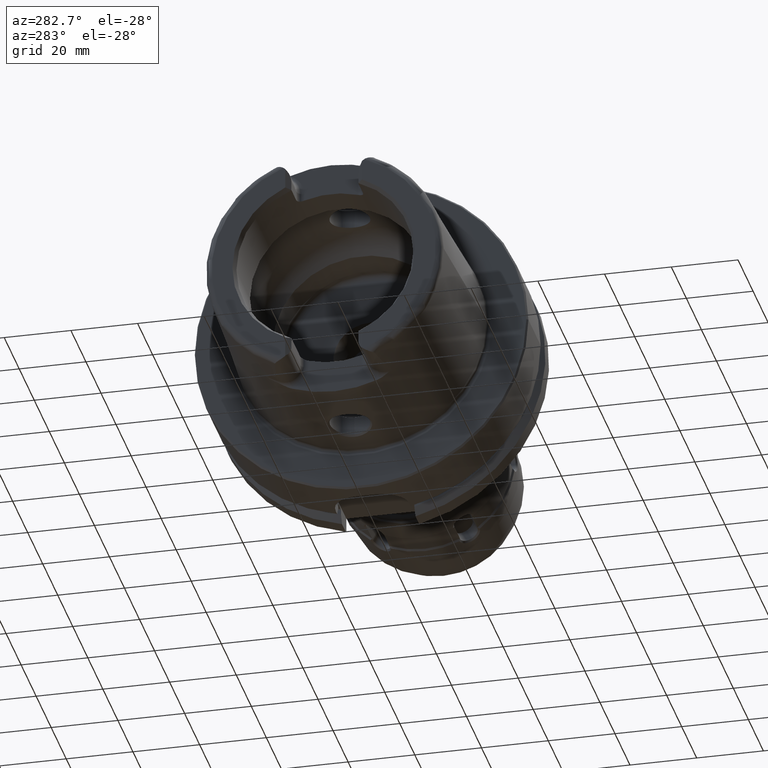
[diagram: clean part render]
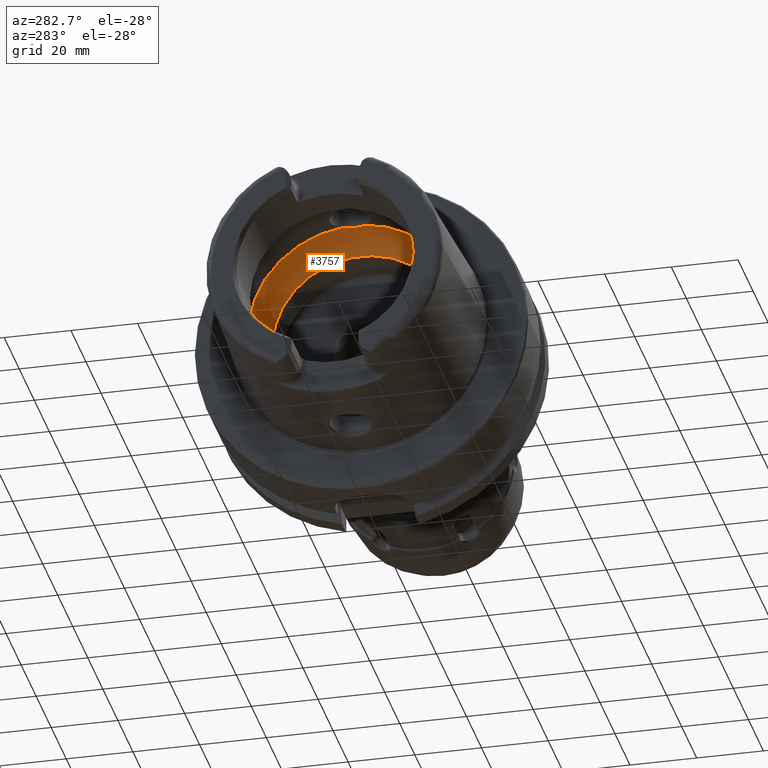
[diagram: same view with one face highlighted and labeled with its STEP entity id]
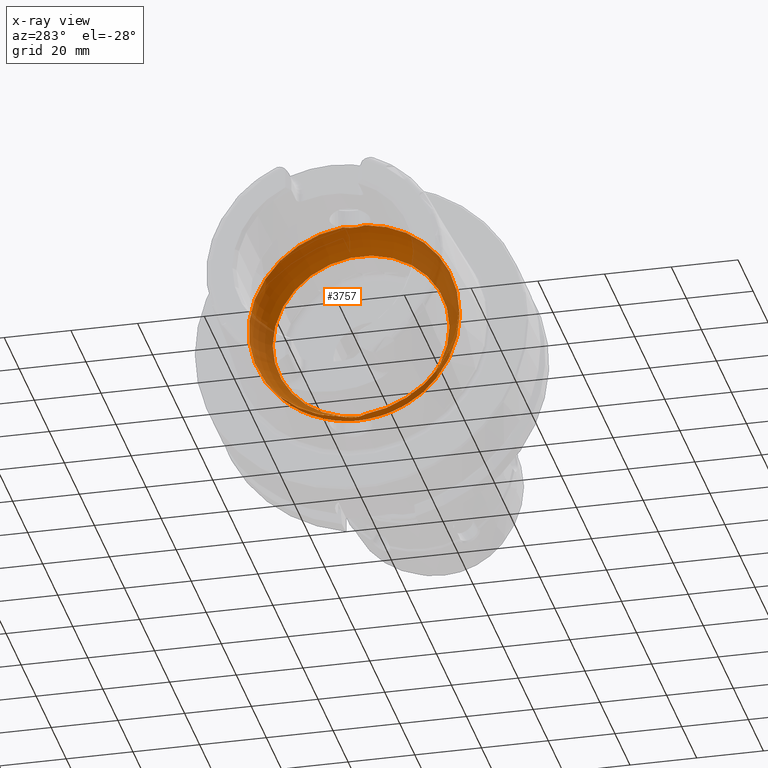
[diagram: x-ray of the same camera — body ghosted, the highlighted face saturated]
A machine part, auxiliary view. The second image highlights one B-rep face of the part: STEP entity #3757.
The next image is the same camera in x-ray: the body ghosted, the highlighted face saturated — about 34% of this face is hidden behind the body in this view.
In plain terms, the highlighted toroidal blend (fillet) surface has major radius 19.5 mm and minor (blend) radius 12 mm.
Its self-contained STEP definition (entity closure, byte-faithful):
#87=B_SPLINE_CURVE_WITH_KNOTS('',3,(#6206,#6207,#6208,#6209,#6210,#6211,
#6212,#6213,#6214,#6215),.UNSPECIFIED.,.F.,.F.,(4,2,2,2,4),(-0.704306975532235,
-0.563368317577754,-0.446049375641081,-0.386534165165624,-0.352317223799877),
 .UNSPECIFIED.);
#89=B_SPLINE_CURVE_WITH_KNOTS('',3,(#6248,#6249,#6250,#6251,#6252,#6253,
#6254,#6255,#6256,#6257),.UNSPECIFIED.,.F.,.F.,(4,2,2,2,4),(-0.352317223799877,
-0.339935606805379,-0.289031750490702,-0.208814277120691,0.),
 .UNSPECIFIED.);
#92=B_SPLINE_CURVE_WITH_KNOTS('',3,(#6398,#6399,#6400,#6401,#6402,#6403,
#6404,#6405,#6406,#6407),.UNSPECIFIED.,.F.,.F.,(4,2,2,2,4),(-0.704306975532881,
-0.563368317578124,-0.446049375641235,-0.386534165165663,-0.352317223799864),
 .UNSPECIFIED.);
#94=B_SPLINE_CURVE_WITH_KNOTS('',3,(#6440,#6441,#6442,#6443,#6444,#6445,
#6446,#6447,#6448,#6449),.UNSPECIFIED.,.F.,.F.,(4,2,2,2,4),(-0.352317223799864,
-0.339935606805357,-0.289031750490679,-0.208814277120681,0.),
 .UNSPECIFIED.);
#788=FACE_OUTER_BOUND('',#1005,.T.);
#1005=EDGE_LOOP('',(#2699,#2700,#2701,#2702,#2703,#2704,#2705,#2706,#2707,
#2708,#2709,#2710));
#1246=CIRCLE('',#4100,31.5);
#1250=CIRCLE('',#4104,31.5);
#1251=CIRCLE('',#4105,31.5);
#1252=CIRCLE('',#4107,26.5);
#1253=CIRCLE('',#4108,26.5);
#1254=CIRCLE('',#4109,26.5);
#1255=CIRCLE('',#4110,12.);
#1555=VERTEX_POINT('',#6203);
#1556=VERTEX_POINT('',#6205);
#1557=VERTEX_POINT('',#6216);
#1560=VERTEX_POINT('',#6396);
#1561=VERTEX_POINT('',#6397);
#1562=VERTEX_POINT('',#6408);
#1564=VERTEX_POINT('',#6454);
#1568=VERTEX_POINT('',#6466);
#1569=VERTEX_POINT('',#6467);
#1570=VERTEX_POINT('',#6469);
#1998=EDGE_CURVE('',#1556,#1555,#87,.T.);
#2000=EDGE_CURVE('',#1555,#1557,#89,.T.);
#2004=EDGE_CURVE('',#1560,#1561,#92,.T.);
#2006=EDGE_CURVE('',#1561,#1562,#94,.T.);
#2009=EDGE_CURVE('',#1564,#1560,#1246,.T.);
#2014=EDGE_CURVE('',#1557,#1564,#1250,.T.);
#2015=EDGE_CURVE('',#1562,#1556,#1251,.T.);
#2016=EDGE_CURVE('',#1568,#1569,#1252,.T.);
#2017=EDGE_CURVE('',#1570,#1568,#1253,.T.);
#2018=EDGE_CURVE('',#1569,#1570,#1254,.T.);
#2019=EDGE_CURVE('',#1569,#1555,#1255,.T.);
#2699=ORIENTED_EDGE('',*,*,#2016,.F.);
#2700=ORIENTED_EDGE('',*,*,#2017,.F.);
#2701=ORIENTED_EDGE('',*,*,#2018,.F.);
#2702=ORIENTED_EDGE('',*,*,#2019,.T.);
#2703=ORIENTED_EDGE('',*,*,#2000,.T.);
#2704=ORIENTED_EDGE('',*,*,#2014,.T.);
#2705=ORIENTED_EDGE('',*,*,#2009,.T.);
#2706=ORIENTED_EDGE('',*,*,#2004,.T.);
#2707=ORIENTED_EDGE('',*,*,#2006,.T.);
#2708=ORIENTED_EDGE('',*,*,#2015,.T.);
#2709=ORIENTED_EDGE('',*,*,#1998,.T.);
#2710=ORIENTED_EDGE('',*,*,#2019,.F.);
#3693=TOROIDAL_SURFACE('',#4106,19.5,12.);
#3757=ADVANCED_FACE('',(#788),#3693,.F.);
#4100=AXIS2_PLACEMENT_3D('',#6455,#4717,#4718);
#4104=AXIS2_PLACEMENT_3D('',#6463,#4726,#4727);
#4105=AXIS2_PLACEMENT_3D('',#6464,#4728,#4729);
#4106=AXIS2_PLACEMENT_3D('',#6465,#4730,#4731);
#4107=AXIS2_PLACEMENT_3D('',#6468,#4732,#4733);
#4108=AXIS2_PLACEMENT_3D('',#6470,#4734,#4735);
#4109=AXIS2_PLACEMENT_3D('',#6471,#4736,#4737);
#4110=AXIS2_PLACEMENT_3D('',#6472,#4738,#4739);
#4717=DIRECTION('center_axis',(-1.,0.,0.));
#4718=DIRECTION('ref_axis',(0.,0.,1.));
#4726=DIRECTION('center_axis',(-1.,0.,0.));
#4727=DIRECTION('ref_axis',(0.,0.,1.));
#4728=DIRECTION('center_axis',(-1.,0.,0.));
#4729=DIRECTION('ref_axis',(0.,0.,1.));
#4730=DIRECTION('center_axis',(-1.,0.,0.));
#4731=DIRECTION('ref_axis',(0.,0.,1.));
#4732=DIRECTION('center_axis',(-1.,0.,0.));
#4733=DIRECTION('ref_axis',(0.,0.,1.));
#4734=DIRECTION('center_axis',(-1.,0.,0.));
#4735=DIRECTION('ref_axis',(0.,0.,1.));
#4736=DIRECTION('center_axis',(-1.,0.,0.));
#4737=DIRECTION('ref_axis',(0.,0.,1.));
#4738=DIRECTION('center_axis',(0.,1.,-1.22464679914735E-16));
#4739=DIRECTION('ref_axis',(0.,-1.22464679914735E-16,-1.));
#6203=CARTESIAN_POINT('',(-9.,7.31685969699336E-16,-31.4582607431014));
#6205=CARTESIAN_POINT('',(-10.,3.31662479035542,-31.3249102153542));
#6206=CARTESIAN_POINT('Ctrl Pts',(-10.,3.31662479035541,-31.3249102153542));
#6207=CARTESIAN_POINT('Ctrl Pts',(-9.74127936765642,2.9265887617158,-31.3662065240371));
#6208=CARTESIAN_POINT('Ctrl Pts',(-9.52862762836098,2.50688318043554,-31.3949925235713));
#6209=CARTESIAN_POINT('Ctrl Pts',(-9.23240476385999,1.69927856892452,-31.4324255053116));
#6210=CARTESIAN_POINT('Ctrl Pts',(-9.13392344910017,1.31988974241601,-31.4435429781858));
#6211=CARTESIAN_POINT('Ctrl Pts',(-9.04220079429722,0.737558982965052,-31.4537190708018));
#6212=CARTESIAN_POINT('Ctrl Pts',(-9.02106779489129,0.540134132990375,-31.4559959808551));
#6213=CARTESIAN_POINT('Ctrl Pts',(-9.00325309475839,0.228126507331767,-31.4579131546092));
#6214=CARTESIAN_POINT('Ctrl Pts',(-9.,0.114070256385601,-31.4582607431014));
#6215=CARTESIAN_POINT('Ctrl Pts',(-9.,6.93889390390723E-16,-31.4582607431014));
#6216=CARTESIAN_POINT('',(-10.,-3.31662479035542,-31.3249102153542));
#6248=CARTESIAN_POINT('Ctrl Pts',(-9.,7.01335490450834E-16,-31.4582607431014));
#6249=CARTESIAN_POINT('Ctrl Pts',(-9.,-0.0412770448981316,-31.4582607431014));
#6250=CARTESIAN_POINT('Ctrl Pts',(-9.0004259501075,-0.0825559236689198,
-31.4582151361457));
#6251=CARTESIAN_POINT('Ctrl Pts',(-9.00478075477959,-0.293516919658797,
-31.4577484235034));
#6252=CARTESIAN_POINT('Ctrl Pts',(-9.01548241237086,-0.462981091842713,
-31.4566045938877));
#6253=CARTESIAN_POINT('Ctrl Pts',(-9.06151123201634,-0.897706518793593,
-31.4515940123075));
#6254=CARTESIAN_POINT('Ctrl Pts',(-9.10742242341762,-1.16146830462694,-31.4465573898449));
#6255=CARTESIAN_POINT('Ctrl Pts',(-9.33560100291262,-2.09736419662528,-31.4200720324784));
#6256=CARTESIAN_POINT('Ctrl Pts',(-9.61673416003176,-2.73882979665765,-31.3860861033828));
#6257=CARTESIAN_POINT('Ctrl Pts',(-10.,-3.31662479035541,-31.3249102153542));
#6396=CARTESIAN_POINT('',(-10.,-3.31662479035542,31.3249102153542));
#6397=CARTESIAN_POINT('',(-8.99999999999999,7.75054056598756E-16,31.4582607431014));
#6398=CARTESIAN_POINT('Ctrl Pts',(-9.99999999999999,-3.31662479035541,31.3249102153542));
#6399=CARTESIAN_POINT('Ctrl Pts',(-9.74127936765643,-2.92658876171583,31.3662065240371));
#6400=CARTESIAN_POINT('Ctrl Pts',(-9.52862762836099,-2.50688318043561,31.3949925235713));
#6401=CARTESIAN_POINT('Ctrl Pts',(-9.23240476385996,-1.69927856892447,31.4324255053116));
#6402=CARTESIAN_POINT('Ctrl Pts',(-9.13392344910015,-1.31988974241592,31.4435429781858));
#6403=CARTESIAN_POINT('Ctrl Pts',(-9.04220079429722,-0.737558982965067,
31.4537190708018));
#6404=CARTESIAN_POINT('Ctrl Pts',(-9.02106779489129,-0.540134132990415,
31.4559959808551));
#6405=CARTESIAN_POINT('Ctrl Pts',(-9.00325309475839,-0.228126507331796,
31.4579131546092));
#6406=CARTESIAN_POINT('Ctrl Pts',(-8.99999999999999,-0.114070256385655,
31.4582607431014));
#6407=CARTESIAN_POINT('Ctrl Pts',(-8.99999999999999,7.97972798949331E-16,
31.4582607431014));
#6408=CARTESIAN_POINT('',(-10.,3.31662479035542,31.3249102153542));
#6440=CARTESIAN_POINT('Ctrl Pts',(-8.99999999999999,8.16547887892294E-16,
31.4582607431014));
#6441=CARTESIAN_POINT('Ctrl Pts',(-8.99999999999999,0.0412770448981195,
31.4582607431014));
#6442=CARTESIAN_POINT('Ctrl Pts',(-9.00042595010749,0.0825559236689046,
31.4582151361457));
#6443=CARTESIAN_POINT('Ctrl Pts',(-9.00478075477959,0.293516919658727,31.4577484235034));
#6444=CARTESIAN_POINT('Ctrl Pts',(-9.01548241237085,0.462981091842669,31.4566045938877));
#6445=CARTESIAN_POINT('Ctrl Pts',(-9.06151123201633,0.897706518793561,31.4515940123075));
#6446=CARTESIAN_POINT('Ctrl Pts',(-9.1074224234176,1.16146830462691,31.4465573898449));
#6447=CARTESIAN_POINT('Ctrl Pts',(-9.33560100291262,2.09736419662534,31.4200720324784));
#6448=CARTESIAN_POINT('Ctrl Pts',(-9.61673416003176,2.73882979665767,31.3860861033828));
#6449=CARTESIAN_POINT('Ctrl Pts',(-9.99999999999999,3.3166247903554,31.3249102153542));
#6454=CARTESIAN_POINT('',(-10.,-31.5,3.85763741731416E-15));
#6455=CARTESIAN_POINT('Origin',(-10.,0.,0.));
#6463=CARTESIAN_POINT('Origin',(-10.,0.,0.));
#6464=CARTESIAN_POINT('Origin',(-10.,0.,0.));
#6465=CARTESIAN_POINT('Origin',(-10.,0.,0.));
#6466=CARTESIAN_POINT('',(-0.253205655191035,26.5,0.));
#6467=CARTESIAN_POINT('',(-0.253205655191033,-3.24531401774049E-15,-26.5));
#6468=CARTESIAN_POINT('Origin',(-0.253205655191033,0.,0.));
#6469=CARTESIAN_POINT('',(-0.253205655191033,-26.5,3.24531401774049E-15));
#6470=CARTESIAN_POINT('Origin',(-0.253205655191033,0.,0.));
#6471=CARTESIAN_POINT('Origin',(-0.253205655191033,0.,0.));
#6472=CARTESIAN_POINT('Origin',(-10.,-2.38806125833734E-15,-19.5));